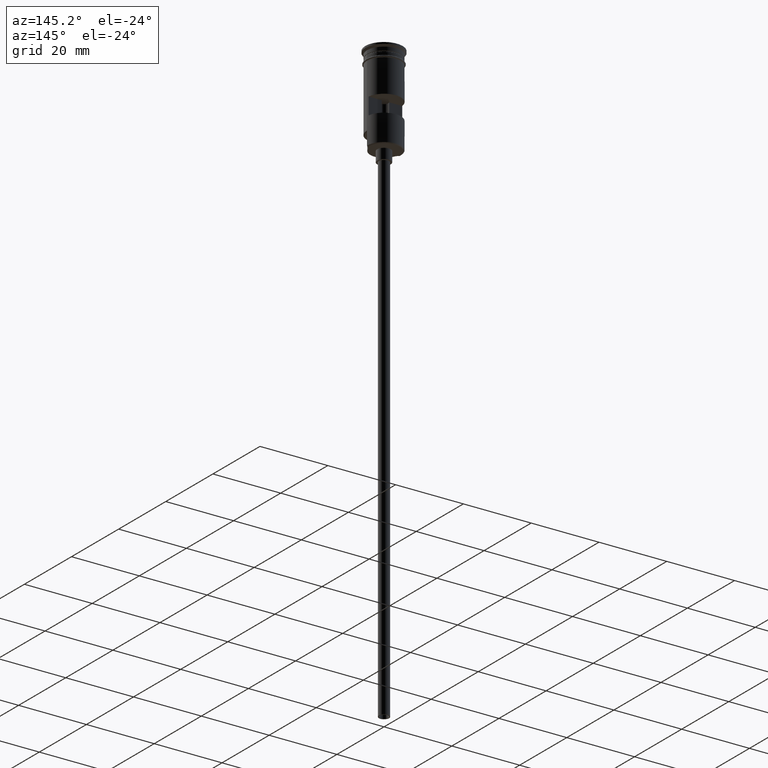
[diagram: clean part render]
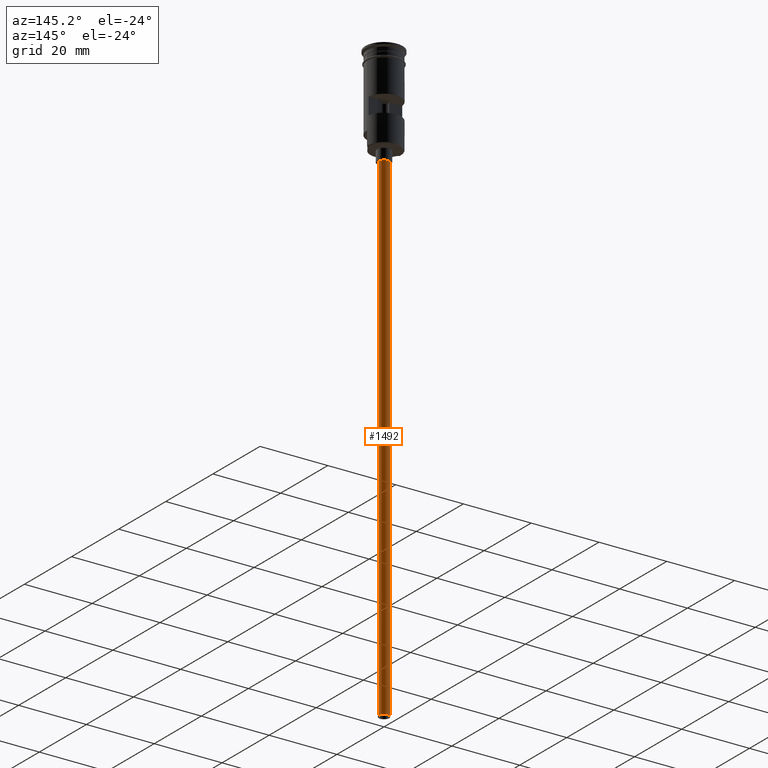
[diagram: same view with one face highlighted and labeled with its STEP entity id]
A machine part, auxiliary view. The second image highlights one B-rep face of the part: STEP entity #1492.
In plain terms, the highlighted cylindrical surface (edge-blend (fillet) strip) has radius 1.5 mm, axis along (-0, -0, 1).
Its self-contained STEP definition (entity closure, byte-faithful):
#44 = CIRCLE ( 'NONE', #270, 1.500000000000000222 ) ;
#59 = CARTESIAN_POINT ( 'NONE',  ( -1.500000000000000222, 1.836970198721030181E-16, -176.5000000000000000 ) ) ;
#74 = AXIS2_PLACEMENT_3D ( 'NONE', #1126, #126, #895 ) ;
#102 = CIRCLE ( 'NONE', #74, 1.500000000000000222 ) ;
#126 = DIRECTION ( 'NONE',  ( 0.000000000000000000, 0.000000000000000000, -1.000000000000000000 ) ) ;
#199 = VECTOR ( 'NONE', #1179, 1000.000000000000000 ) ;
#206 = CARTESIAN_POINT ( 'NONE',  ( 1.500000000000000222, 0.000000000000000000, -176.5000000000000000 ) ) ;
#270 = AXIS2_PLACEMENT_3D ( 'NONE', #1181, #479, #1458 ) ;
#324 = CARTESIAN_POINT ( 'NONE',  ( 1.500000000000000222, 0.000000000000000000, -176.5000000000000000 ) ) ;
#353 = CARTESIAN_POINT ( 'NONE',  ( 0.000000000000000000, 0.000000000000000000, -176.5000000000000000 ) ) ;
#399 = CARTESIAN_POINT ( 'NONE',  ( -1.500000000000000222, 1.836970198721030181E-16, -29.50000000000000000 ) ) ;
#442 = VERTEX_POINT ( 'NONE', #889 ) ;
#479 = DIRECTION ( 'NONE',  ( 0.000000000000000000, 0.000000000000000000, -1.000000000000000000 ) ) ;
#567 = VERTEX_POINT ( 'NONE', #399 ) ;
#672 = CARTESIAN_POINT ( 'NONE',  ( -1.500000000000000222, 1.836970198721030181E-16, -176.5000000000000000 ) ) ;
#680 = CYLINDRICAL_SURFACE ( 'NONE', #1217, 1.500000000000000222 ) ;
#702 = EDGE_LOOP ( 'NONE', ( #1068, #1227, #1491, #1148 ) ) ;
#706 = VERTEX_POINT ( 'NONE', #672 ) ;
#814 = EDGE_CURVE ( 'NONE', #567, #442, #44, .T. ) ;
#826 = DIRECTION ( 'NONE',  ( 1.000000000000000000, 0.000000000000000000, 0.000000000000000000 ) ) ;
#889 = CARTESIAN_POINT ( 'NONE',  ( 1.500000000000000222, 0.000000000000000000, -29.50000000000000000 ) ) ;
#895 = DIRECTION ( 'NONE',  ( -1.000000000000000000, 0.000000000000000000, 0.000000000000000000 ) ) ;
#915 = EDGE_CURVE ( 'NONE', #706, #998, #102, .T. ) ;
#998 = VERTEX_POINT ( 'NONE', #324 ) ;
#1068 = ORIENTED_EDGE ( 'NONE', *, *, #915, .F. ) ;
#1085 = VECTOR ( 'NONE', #1519, 1000.000000000000000 ) ;
#1126 = CARTESIAN_POINT ( 'NONE',  ( 0.000000000000000000, 0.000000000000000000, -176.5000000000000000 ) ) ;
#1148 = ORIENTED_EDGE ( 'NONE', *, *, #1589, .F. ) ;
#1173 = DIRECTION ( 'NONE',  ( -0.000000000000000000, -0.000000000000000000, 1.000000000000000000 ) ) ;
#1179 = DIRECTION ( 'NONE',  ( -0.000000000000000000, -0.000000000000000000, 1.000000000000000000 ) ) ;
#1181 = CARTESIAN_POINT ( 'NONE',  ( 0.000000000000000000, 0.000000000000000000, -29.50000000000000000 ) ) ;
#1217 = AXIS2_PLACEMENT_3D ( 'NONE', #353, #1173, #826 ) ;
#1227 = ORIENTED_EDGE ( 'NONE', *, *, #1312, .T. ) ;
#1292 = FACE_OUTER_BOUND ( 'NONE', #702, .T. ) ;
#1297 = LINE ( 'NONE', #59, #1085 ) ;
#1302 = LINE ( 'NONE', #206, #199 ) ;
#1312 = EDGE_CURVE ( 'NONE', #706, #567, #1297, .T. ) ;
#1458 = DIRECTION ( 'NONE',  ( -1.000000000000000000, 0.000000000000000000, 0.000000000000000000 ) ) ;
#1491 = ORIENTED_EDGE ( 'NONE', *, *, #814, .T. ) ;
#1492 = ADVANCED_FACE ( 'NONE', ( #1292 ), #680, .T. ) ;
#1519 = DIRECTION ( 'NONE',  ( -0.000000000000000000, -0.000000000000000000, 1.000000000000000000 ) ) ;
#1589 = EDGE_CURVE ( 'NONE', #998, #442, #1302, .T. ) ;